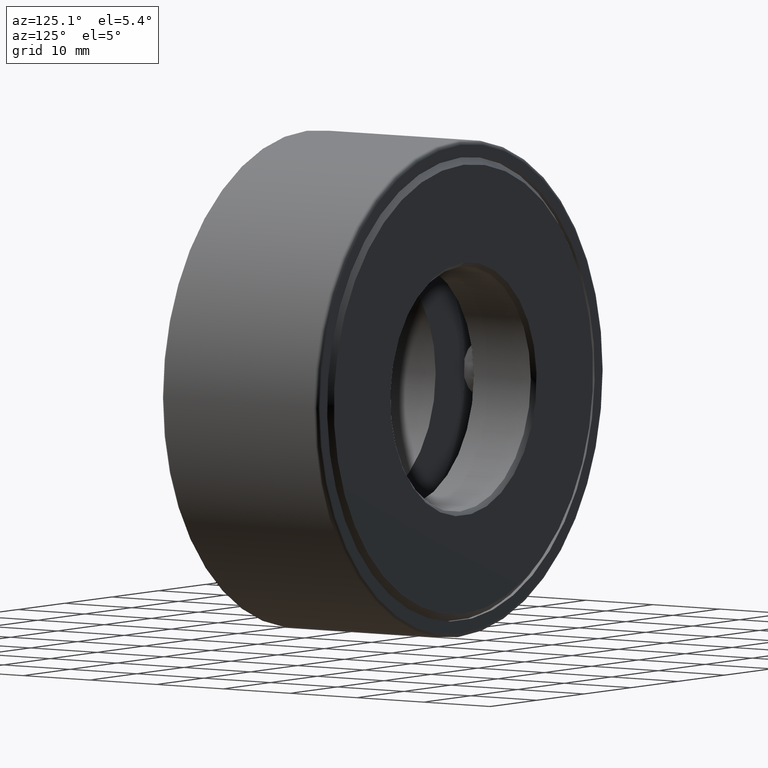
[diagram: clean part render]
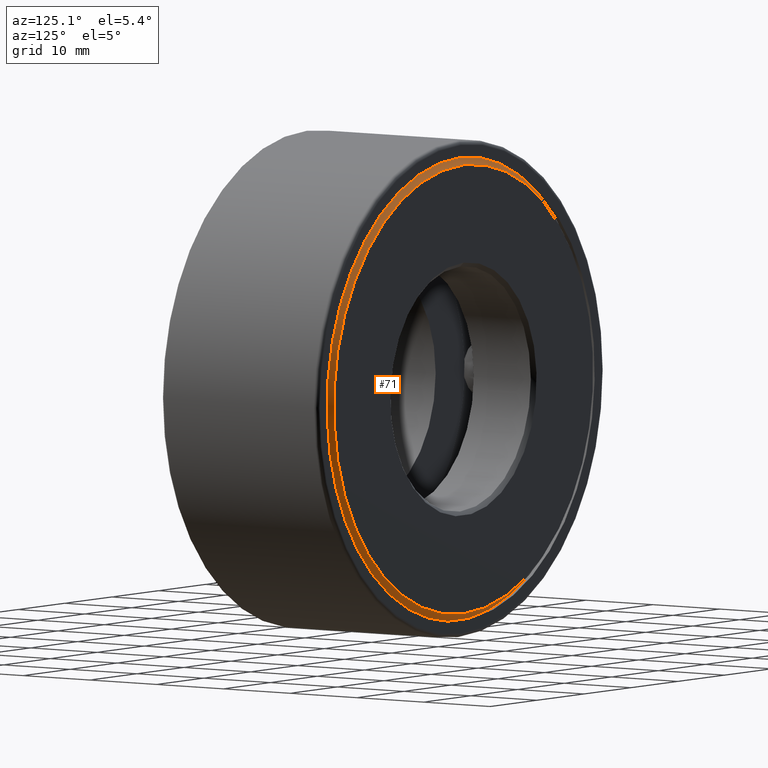
[diagram: same view with one face highlighted and labeled with its STEP entity id]
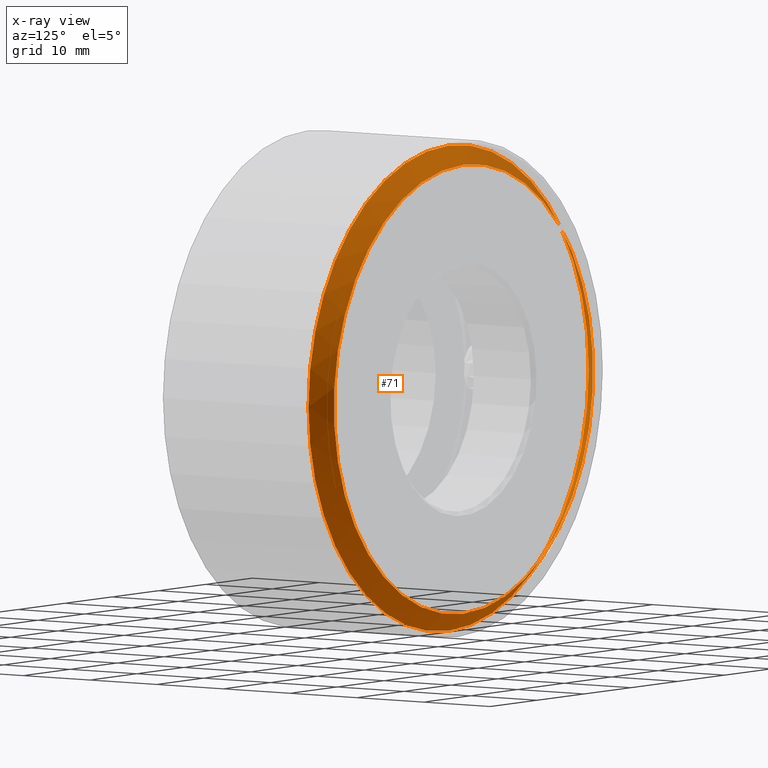
[diagram: x-ray of the same camera — body ghosted, the highlighted face saturated]
A machine part, auxiliary view. The second image highlights one B-rep face of the part: STEP entity #71.
The next image is the same camera in x-ray: the body ghosted, the highlighted face saturated — about 0% of this face is hidden behind the body in this view.
In plain terms, the highlighted conical surface has half-angle 45 deg.
Its self-contained STEP definition (entity closure, byte-faithful):
#23 = EDGE_CURVE ( 'NONE', #540, #540, #259, .T. ) ;
#71 = ADVANCED_FACE ( 'NONE', ( #596, #531 ), #88, .T. ) ;
#78 = CIRCLE ( 'NONE', #422, 1.088124999999999800 ) ;
#84 = DIRECTION ( 'NONE',  ( 0.0000000000000000000, -1.000000000000000000, 0.0000000000000000000 ) ) ;
#88 = CONICAL_SURFACE ( 'NONE', #469, 1.088124999999999800, 0.7853981633974498300 ) ;
#259 = CIRCLE ( 'NONE', #555, 1.176124999999999900 ) ;
#272 = EDGE_CURVE ( 'NONE', #379, #379, #78, .T. ) ;
#300 = DIRECTION ( 'NONE',  ( -0.0000000000000000000, 1.000000000000000000, -0.0000000000000000000 ) ) ;
#366 = DIRECTION ( 'NONE',  ( 0.0000000000000000000, 0.0000000000000000000, 1.000000000000000000 ) ) ;
#370 = ORIENTED_EDGE ( 'NONE', *, *, #272, .F. ) ;
#379 = VERTEX_POINT ( 'NONE', #527 ) ;
#383 = ORIENTED_EDGE ( 'NONE', *, *, #23, .T. ) ;
#402 = DIRECTION ( 'NONE',  ( 0.0000000000000000000, 0.0000000000000000000, 1.000000000000000000 ) ) ;
#422 = AXIS2_PLACEMENT_3D ( 'NONE', #515, #565, #366 ) ;
#469 = AXIS2_PLACEMENT_3D ( 'NONE', #541, #84, #495 ) ;
#474 = EDGE_LOOP ( 'NONE', ( #370 ) ) ;
#495 = DIRECTION ( 'NONE',  ( 0.0000000000000000000, 0.0000000000000000000, -1.000000000000000000 ) ) ;
#496 = EDGE_LOOP ( 'NONE', ( #383 ) ) ;
#515 = CARTESIAN_POINT ( 'NONE',  ( 0.0000000000000000000, 0.9375000000000000000, 0.0000000000000000000 ) ) ;
#527 = CARTESIAN_POINT ( 'NONE',  ( 0.0000000000000000000, 0.9375000000000000000, 1.088124999999999800 ) ) ;
#531 = FACE_BOUND ( 'NONE', #474, .T. ) ;
#540 = VERTEX_POINT ( 'NONE', #574 ) ;
#541 = CARTESIAN_POINT ( 'NONE',  ( 0.0000000000000000000, 0.9375000000000000000, 0.0000000000000000000 ) ) ;
#555 = AXIS2_PLACEMENT_3D ( 'NONE', #591, #300, #402 ) ;
#565 = DIRECTION ( 'NONE',  ( -0.0000000000000000000, 1.000000000000000000, -0.0000000000000000000 ) ) ;
#574 = CARTESIAN_POINT ( 'NONE',  ( 0.0000000000000000000, 0.8495000000000003700, 1.176124999999999900 ) ) ;
#591 = CARTESIAN_POINT ( 'NONE',  ( 0.0000000000000000000, 0.8495000000000003700, 0.0000000000000000000 ) ) ;
#596 = FACE_OUTER_BOUND ( 'NONE', #496, .T. ) ;